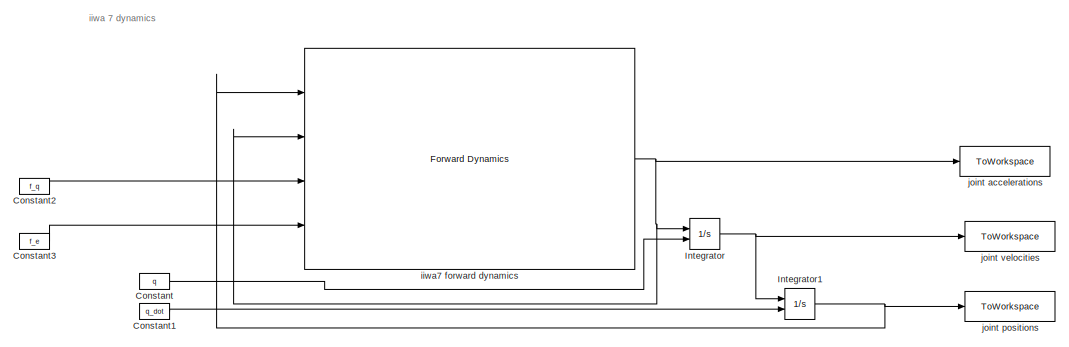
[diagram: root canvas - part 1/2, full width, top band]
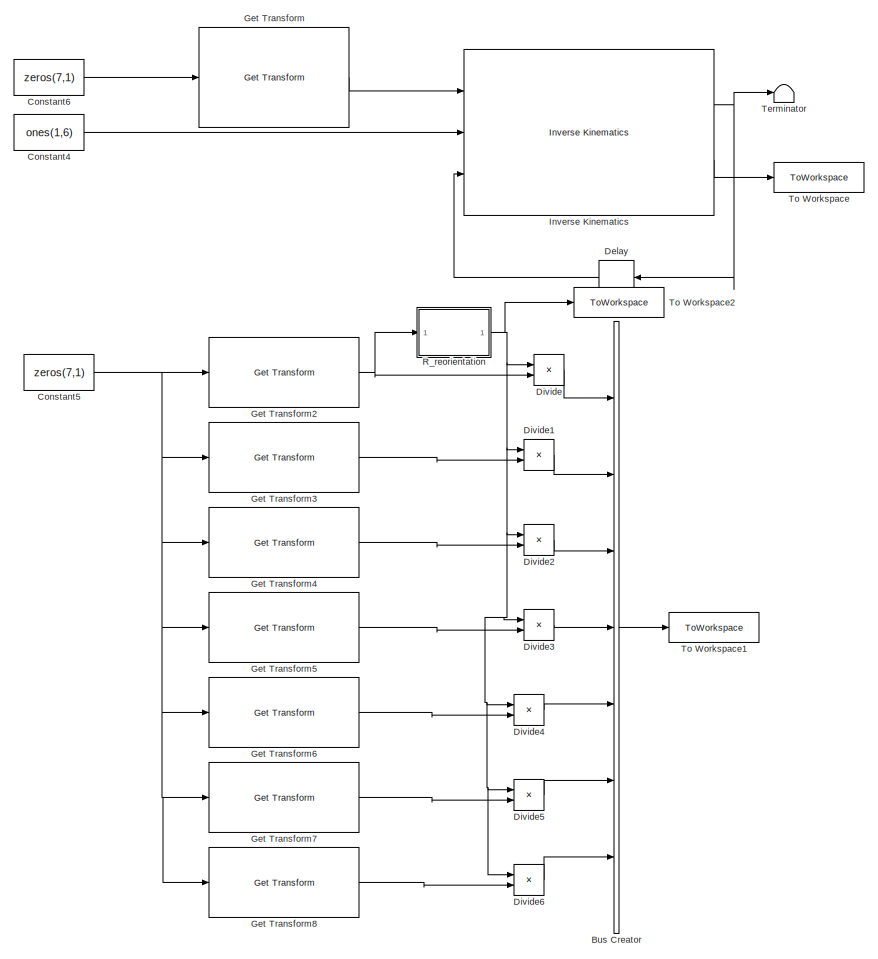
[diagram: root canvas - part 2/2, full width, middle band]
MODEL slx_185237b09eee
KIND model
CONFIG AbsTol = auto
CONFIG EnableMultiTasking = off
CONFIG FixedStep = 0.01
CONFIG MaxStep = auto
CONFIG MinStep = auto
CONFIG RelTol = 1e-3
CONFIG SampleTimeConstraint = Unconstrained
CONFIG SolverName = ode4
CONFIG StartTime = 0.0
CONFIG StopTime = 0.01
BLOCK [BusCreator] Bus Creator
  DisplayOption = bar
  InheritFromInputs = on
  Inputs = 7
  Ports = [7, 1]
BLOCK [Constant] Constant
  Commented = on
  Value = q
BLOCK [Constant] Constant1
  Commented = on
  Value = q_dot
BLOCK [Constant] Constant2
  Commented = on
  Value = f_q
BLOCK [Constant] Constant3
  Commented = on
  Value = f_e
BLOCK [Constant] Constant4
  Commented = on
  Value = ones(1,6)
BLOCK [Constant] Constant5
  Value = zeros(7,1)
BLOCK [Constant] Constant6
  Commented = on
  Value = zeros(7,1)
BLOCK [Delay] Delay
  Commented = on
  DelayLength = 1
  InitialCondition = zeros(7,1)
  InputPortMap = u0
  NameLocation = top
  Ports = [1, 1]
BLOCK [Product] Divide
  Inputs = /*
  Multiplication = Matrix(*)
  Ports = [2, 1]
BLOCK [Product] Divide1
  Inputs = /*
  Multiplication = Matrix(*)
  Ports = [2, 1]
BLOCK [Product] Divide2
  Inputs = /*
  Multiplication = Matrix(*)
  Ports = [2, 1]
BLOCK [Product] Divide3
  Inputs = /*
  Multiplication = Matrix(*)
  Ports = [2, 1]
BLOCK [Product] Divide4
  Inputs = /*
  Multiplication = Matrix(*)
  Ports = [2, 1]
BLOCK [Product] Divide5
  Inputs = /*
  Multiplication = Matrix(*)
  Ports = [2, 1]
BLOCK [Product] Divide6
  Inputs = /*
  Multiplication = Matrix(*)
  Ports = [2, 1]
BLOCK [Reference] Get Transform  REF=robotmaniplib/Get Transform
  Commented = on
  Ports = [1, 1]
  SourceBlock = robotmaniplib/Get Transform
  SourceProductBaseCode = RO
  SourceType = Get Transform
BLOCK [Reference] Get Transform2  REF=robotmaniplib/Get Transform
  Ports = [1, 1]
  SourceBlock = robotmaniplib/Get Transform
  SourceProductBaseCode = RO
  SourceType = Get Transform
BLOCK [Reference] Get Transform3  REF=robotmaniplib/Get Transform
  Ports = [1, 1]
  SourceBlock = robotmaniplib/Get Transform
  SourceProductBaseCode = RO
  SourceType = Get Transform
BLOCK [Reference] Get Transform4  REF=robotmaniplib/Get Transform
  Ports = [1, 1]
  SourceBlock = robotmaniplib/Get Transform
  SourceProductBaseCode = RO
  SourceType = Get Transform
BLOCK [Reference] Get Transform5  REF=robotmaniplib/Get Transform
  Ports = [1, 1]
  SourceBlock = robotmaniplib/Get Transform
  SourceProductBaseCode = RO
  SourceType = Get Transform
BLOCK [Reference] Get Transform6  REF=robotmaniplib/Get Transform
  Ports = [1, 1]
  SourceBlock = robotmaniplib/Get Transform
  SourceProductBaseCode = RO
  SourceType = Get Transform
BLOCK [Reference] Get Transform7  REF=robotmaniplib/Get Transform
  Ports = [1, 1]
  SourceBlock = robotmaniplib/Get Transform
  SourceProductBaseCode = RO
  SourceType = Get Transform
BLOCK [Reference] Get Transform8  REF=robotmaniplib/Get Transform
  Ports = [1, 1]
  SourceBlock = robotmaniplib/Get Transform
  SourceProductBaseCode = RO
  SourceType = Get Transform
BLOCK [Integrator] Integrator
  Commented = on
  InitialConditionSource = external
  Ports = [2, 1]
BLOCK [Integrator] Integrator1
  Commented = on
  InitialConditionSource = external
  Ports = [2, 1]
BLOCK [Reference] Inverse Kinematics  REF=robotmaniplib/Inverse Kinematics
  Commented = on
  Ports = [3, 2]
  SourceBlock = robotmaniplib/Inverse Kinematics
  SourceProductBaseCode = RO
  SourceType = Inverse Kinematics
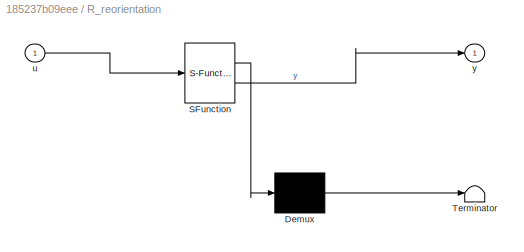
BLOCK [SubSystem] R_reorientation
  ErrorFcn = Stateflow.Translate.translate
  PermitHierarchicalResolution = ExplicitOnly
  Ports = [1, 1]
  RequestExecContextInheritance = off
  SFBlockType = MATLAB Function
  TreatAsAtomicUnit = on
BLOCK [Demux] R_reorientation/ Demux 
  Outputs = 1
  Ports = [1, 1]
BLOCK [S-Function] R_reorientation/ SFunction 
  EnableBusSupport = on
  FunctionName = sf_sfun
  PortCounts = [1 2]
  Ports = [1, 2]
  SFcnIsStateOwnerBlock = off
  SFunctionDeploymentMode = off
  Tag = Stateflow S-Function 2
BLOCK [Terminator] R_reorientation/ Terminator 
BLOCK [Inport] R_reorientation/u
BLOCK [Outport] R_reorientation/y
BLOCK [Terminator] Terminator
  Commented = on
BLOCK [ToWorkspace] To Workspace
  Commented = on
  FixptAsFi = on
  MaxDataPoints = inf
  Ports = [1]
  SampleTime = -1
  SaveFormat = Timeseries
  VariableName = info
BLOCK [ToWorkspace] To Workspace1
  FixptAsFi = on
  MaxDataPoints = inf
  Ports = [1]
  SampleTime = -1
  SaveFormat = Timeseries
  VariableName = R
BLOCK [ToWorkspace] To Workspace2
  FixptAsFi = on
  MaxDataPoints = inf
  Ports = [1]
  SampleTime = -1
  SaveFormat = Timeseries
  VariableName = tempR
BLOCK [Reference] iiwa7 forward dynamics  REF=robotmaniplib/Forward Dynamics
  Commented = on
  Ports = [4, 1]
  SourceBlock = robotmaniplib/Forward Dynamics
  SourceProductBaseCode = RO
  SourceType = Forward Dynamics
BLOCK [ToWorkspace] joint accelerations
  Commented = on
  FixptAsFi = on
  MaxDataPoints = inf
  Ports = [1]
  SampleTime = -1
  SaveFormat = Timeseries
  VariableName = q_ddot
BLOCK [ToWorkspace] joint positions
  Commented = on
  FixptAsFi = on
  MaxDataPoints = inf
  Ports = [1]
  SampleTime = -1
  SaveFormat = Timeseries
  VariableName = q
BLOCK [ToWorkspace] joint velocities
  Commented = on
  FixptAsFi = on
  MaxDataPoints = inf
  Ports = [1]
  SampleTime = -1
  SaveFormat = Timeseries
  VariableName = q_dot
ANNOTATION (root): iiwa 7 dynamics
LINE Bus Creator:1 -> To Workspace1:1
LINE Constant1:1 -> Integrator1:2
LINE Constant2:1 -> iiwa7 forward dynamics:3
LINE Constant3:1 -> iiwa7 forward dynamics:4
LINE Constant4:1 -> Inverse Kinematics:2
NET Constant5:1 -> Get Transform2:1, Get Transform3:1, Get Transform4:1, Get Transform5:1, Get Transform6:1, Get Transform7:1, Get Transform8:1
LINE Constant6:1 -> Get Transform:1
LINE Constant:1 -> Integrator:2
LINE Delay:1 -> Inverse Kinematics:3
LINE Divide1:1 -> Bus Creator:2
LINE Divide2:1 -> Bus Creator:3
LINE Divide3:1 -> Bus Creator:4
LINE Divide4:1 -> Bus Creator:5
LINE Divide5:1 -> Bus Creator:6
LINE Divide6:1 -> Bus Creator:7
LINE Divide:1 -> Bus Creator:1
NET Get Transform2:1 -> Divide:2, R_reorientation:1
LINE Get Transform3:1 -> Divide1:2
LINE Get Transform4:1 -> Divide2:2
LINE Get Transform5:1 -> Divide3:2
LINE Get Transform6:1 -> Divide4:2
LINE Get Transform7:1 -> Divide5:2
LINE Get Transform8:1 -> Divide6:2
LINE Get Transform:1 -> Inverse Kinematics:1
NET Integrator1:1 -> iiwa7 forward dynamics:1, joint positions:1
NET Integrator:1 -> Integrator1:1, joint velocities:1
NET Inverse Kinematics:1 -> Delay:1, Terminator:1
LINE Inverse Kinematics:2 -> To Workspace:1
NET R_reorientation:1 -> Divide1:1, Divide2:1, Divide3:1, Divide4:1, Divide5:1, Divide6:1, Divide:1, To Workspace2:1
NET iiwa7 forward dynamics:1 -> Integrator:1, iiwa7 forward dynamics:2, joint accelerations:1
note: NET lines group one-source signal fan-out (src -> all destinations, sorted); 1:1 wires keep LINE
CHART R_reorientation states=1 transitions=1
  STATE_LABEL 'eML_blk_kernel()'
  STATE_LABEL 'SCRIPT:\nfunction y = reoirent(u)\nu(1:3,4)=zeros(3,1);\ny = u;\n'
CHART  states=0 transitions=0
